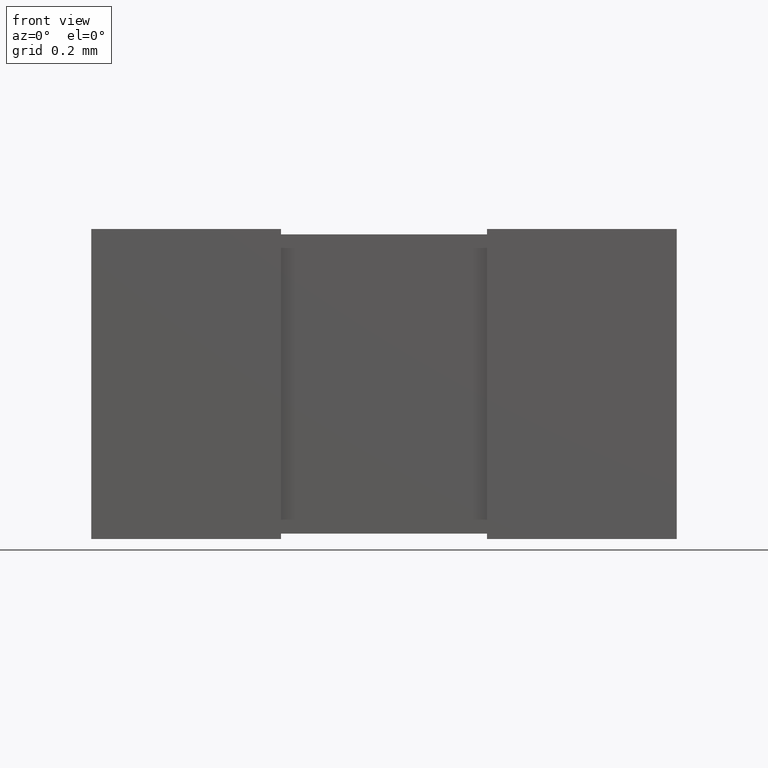
[diagram: clean part render]
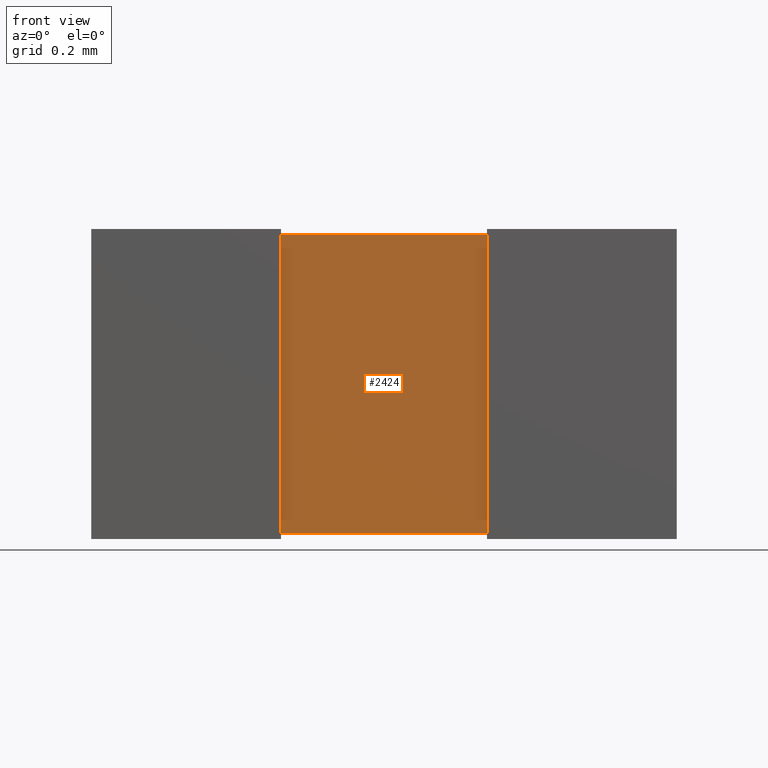
[diagram: same view with one face highlighted and labeled with its STEP entity id]
A machine part, front view. The second image highlights one B-rep face of the part: STEP entity #2424.
In plain terms, the highlighted planar face has unit normal (0, -1, 0).
Its self-contained STEP definition (entity closure, byte-faithful):
#21 = EDGE_CURVE ( 'NONE', #2106, #925, #193, .T. ) ;
#26 = EDGE_CURVE ( 'NONE', #2106, #996, #1551, .T. ) ;
#66 = LINE ( 'NONE', #426, #518 ) ;
#193 = LINE ( 'NONE', #335, #1492 ) ;
#303 = VECTOR ( 'NONE', #723, 1000.000000000000000 ) ;
#335 = CARTESIAN_POINT ( 'NONE',  ( 0.5500000000000001600, 0.01551690000000001400, -0.01551690000000001400 ) ) ;
#426 = CARTESIAN_POINT ( 'NONE',  ( 1.149000000000000000, 0.01551690000000001400, -0.8844831000000001900 ) ) ;
#518 = VECTOR ( 'NONE', #1182, 1000.000000000000000 ) ;
#562 = ORIENTED_EDGE ( 'NONE', *, *, #21, .F. ) ;
#649 = ORIENTED_EDGE ( 'NONE', *, *, #1397, .T. ) ;
#678 = CARTESIAN_POINT ( 'NONE',  ( 1.149000000000000200, 0.01551690000000001400, -0.01551690000000001400 ) ) ;
#723 = DIRECTION ( 'NONE',  ( 0.0000000000000000000, 0.0000000000000000000, -1.000000000000000000 ) ) ;
#731 = FACE_OUTER_BOUND ( 'NONE', #1679, .T. ) ;
#793 = CARTESIAN_POINT ( 'NONE',  ( 0.5500000000000002700, 0.01551690000000001400, -0.9000000000000002400 ) ) ;
#915 = CARTESIAN_POINT ( 'NONE',  ( 0.5510000000000064800, 0.01551690000000001400, -0.01551690000000001400 ) ) ;
#925 = VERTEX_POINT ( 'NONE', #678 ) ;
#995 = DIRECTION ( 'NONE',  ( 0.0000000000000000000, -1.000000000000000000, 0.0000000000000000000 ) ) ;
#996 = VERTEX_POINT ( 'NONE', #1868 ) ;
#1009 = PLANE ( 'NONE',  #1503 ) ;
#1017 = ORIENTED_EDGE ( 'NONE', *, *, #1493, .T. ) ;
#1182 = DIRECTION ( 'NONE',  ( 0.0000000000000000000, 0.0000000000000000000, 1.000000000000000000 ) ) ;
#1347 = DIRECTION ( 'NONE',  ( 1.000000000000000000, 0.0000000000000000000, 0.0000000000000000000 ) ) ;
#1353 = CARTESIAN_POINT ( 'NONE',  ( 0.5500000000000001600, 0.01551690000000001400, -0.8844831000000001900 ) ) ;
#1397 = EDGE_CURVE ( 'NONE', #1878, #925, #66, .T. ) ;
#1492 = VECTOR ( 'NONE', #1683, 1000.000000000000000 ) ;
#1493 = EDGE_CURVE ( 'NONE', #996, #1878, #1511, .T. ) ;
#1503 = AXIS2_PLACEMENT_3D ( 'NONE', #793, #995, #1782 ) ;
#1511 = LINE ( 'NONE', #1353, #1593 ) ;
#1551 = LINE ( 'NONE', #2459, #303 ) ;
#1593 = VECTOR ( 'NONE', #1347, 1000.000000000000000 ) ;
#1679 = EDGE_LOOP ( 'NONE', ( #1017, #649, #562, #2071 ) ) ;
#1683 = DIRECTION ( 'NONE',  ( 1.000000000000000000, 0.0000000000000000000, 0.0000000000000000000 ) ) ;
#1782 = DIRECTION ( 'NONE',  ( 0.0000000000000000000, -0.0000000000000000000, -1.000000000000000000 ) ) ;
#1839 = CARTESIAN_POINT ( 'NONE',  ( 1.149000000000000000, 0.01551690000000001400, -0.8844831000000001900 ) ) ;
#1868 = CARTESIAN_POINT ( 'NONE',  ( 0.5510000000000064800, 0.01551690000000001400, -0.8844831000000001900 ) ) ;
#1878 = VERTEX_POINT ( 'NONE', #1839 ) ;
#2071 = ORIENTED_EDGE ( 'NONE', *, *, #26, .T. ) ;
#2106 = VERTEX_POINT ( 'NONE', #915 ) ;
#2424 = ADVANCED_FACE ( 'NONE', ( #731 ), #1009, .T. ) ;
#2459 = CARTESIAN_POINT ( 'NONE',  ( 0.5510000000000064800, 0.01551690000000001400, -0.01551690000000001400 ) ) ;